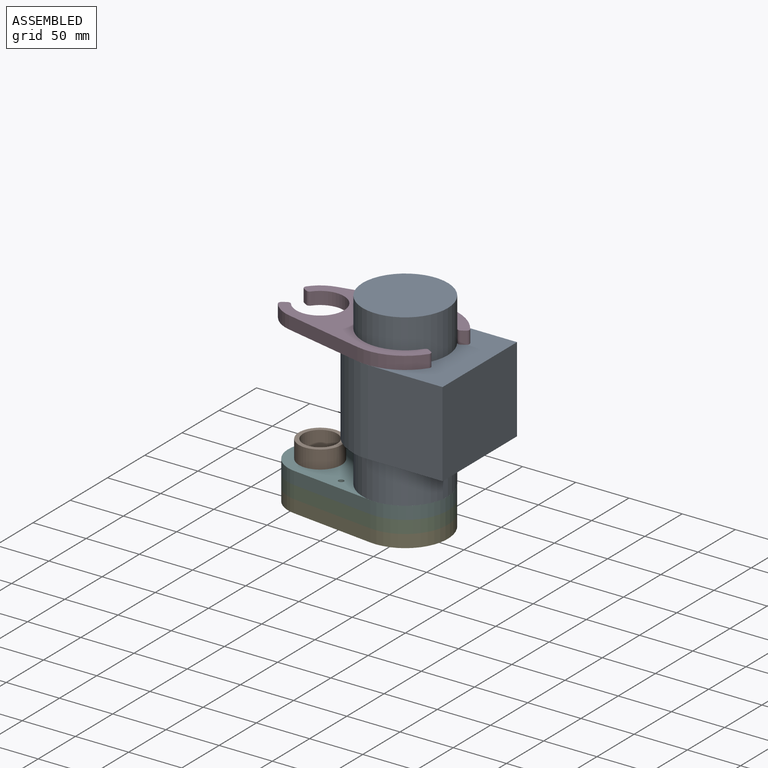
[diagram: assembled view]
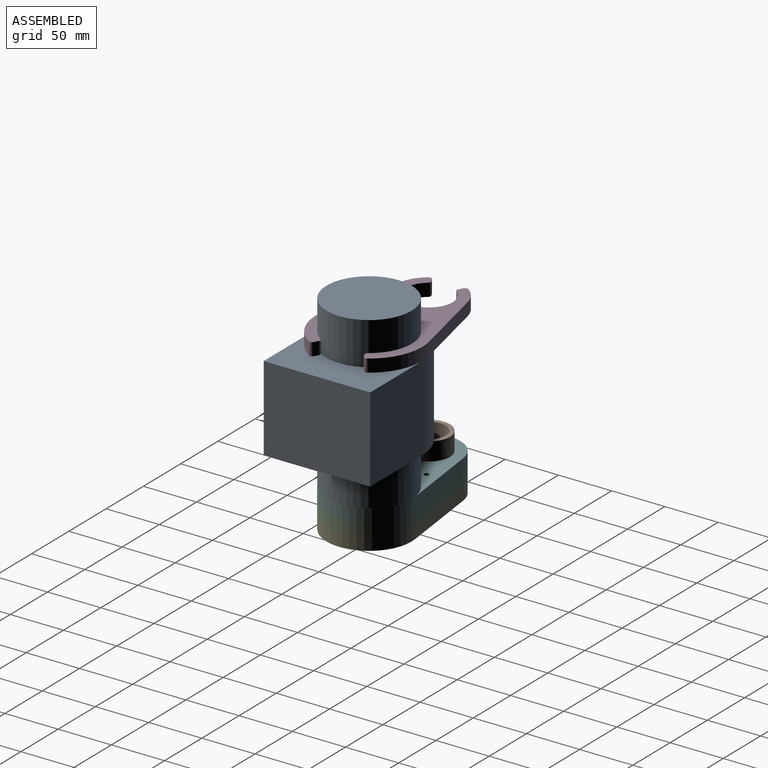
[diagram: assembled view, second angle]
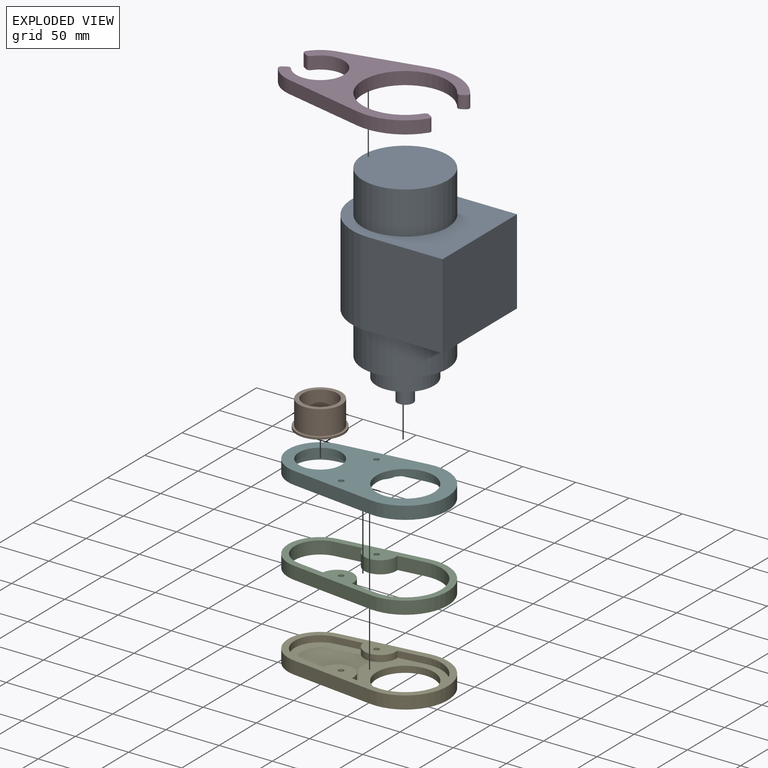
[diagram: exploded view]
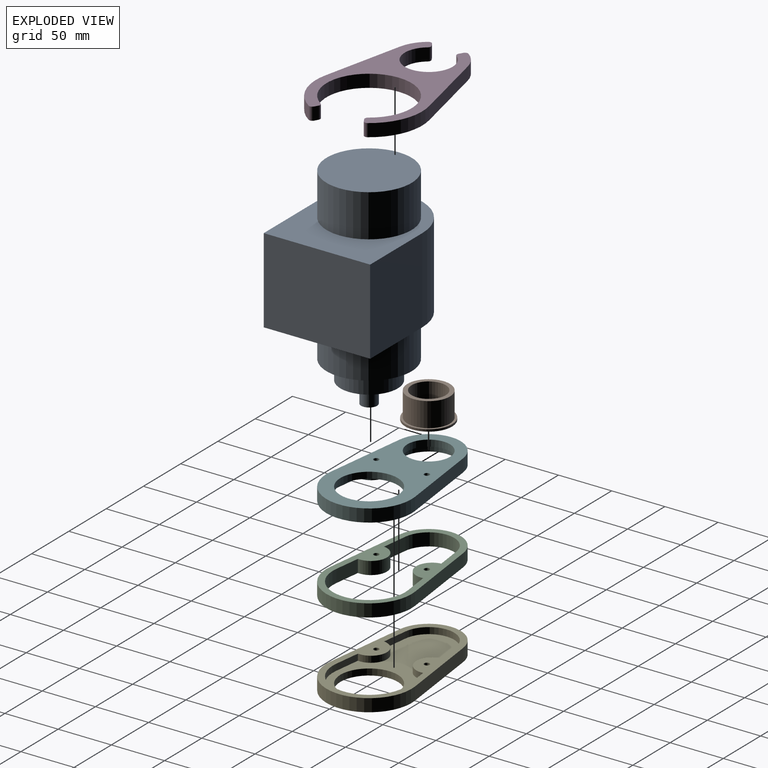
[diagram: exploded view, second angle]
ASSEMBLY  parts=6 mates=5
PART A: 14 faces, bbox 120x100x198 mm
  f0: plane 80x80mm, normal (0,0,-1), area 2736.3mm2, adj f1,f5
  f1: cylinder r=27mm len=54mm, axis (0,0,1), area 3053.6mm2, adj f0,f2
  f2: plane 54x54mm, normal (0,0,-1), area 2113.5mm2, adj f1,f3
  f3: cylinder r=7.5mm len=20mm, axis (0,0,1), area 942.5mm2, adj f2,f4
  f4: plane 15x15mm, normal (0,0,-1), area 176.7mm2, adj f3
  f5: cylinder r=40mm len=80mm, axis (0,0,-1), area 10053.1mm2, adj f0,f6
  f6: plane 120x100mm, normal (0,0,-1), area 5900.4mm2, adj f5,f10,f11,f12,f13
  f7: plane 80x80mm, normal (0,0,1), area 5026.5mm2, adj f8
  f8: cylinder r=40mm len=80mm, axis (0,0,-1), area 10053.1mm2, adj f7,f9
  f9: plane 120x100mm, normal (0,0,1), area 5900.4mm2, adj f8,f10,f11,f12,f13
  f10: plane 100x80mm, normal (1,0,0), area 8000mm2, adj f6,f9,f11,f13
  f11: plane 80x70mm, normal (0,-1,0), area 5600mm2, adj f6,f9,f10,f12
  f12: cylinder r=50mm len=100mm, axis (0,0,-1), area 12566.4mm2, adj f6,f9,f11,f13
  f13: plane 80x70mm, normal (0,1,0), area 5600mm2, adj f6,f9,f10,f12
PART B: 6 faces, bbox 44x44x25 mm
  f0: cylinder r=16mm len=32mm, axis (0,0,-1), area 2513.3mm2, adj f2,f3
  f1: cylinder r=20mm len=40mm, axis (0,0,-1), area 2890.3mm2, adj f2,f5
  f2: plane 40x40mm, normal (0,0,1), area 452.4mm2, adj f0,f1
  f3: plane 44x44mm, normal (0,0,-1), area 716.3mm2, adj f0,f4
  f4: cylinder r=22mm len=44mm, axis (0,0,-1), area 276.5mm2, adj f3,f5
  f5: plane 44x44mm, normal (0,0,1), area 263.9mm2, adj f1,f4
PART C: 16 faces, bbox 150x12x80 mm
  f0: cylinder r=24mm len=47.62mm, axis (0,-1,0), area 832.6mm2, adj f1,f11,f14,f15
  f1: plane 24.49x12mm, normal (0.12,0,-0.99), area 296.2mm2, adj f0,f2,f14,f15
  f2: cylinder r=15mm len=29.88mm, axis (0,-1,0), area 565.5mm2, adj f1,f3,f14,f15
  f3: plane 24.49x12mm, normal (0.12,0,-0.99), area 296.2mm2, adj f2,f4,f14,f15
  f4: cylinder r=34mm len=68mm, axis (0,-1,0), area 1384mm2, adj f3,f5,f14,f15
  f5: plane 24.49x12mm, normal (0.12,0,0.99), area 296.2mm2, adj f4,f6,f14,f15
  f6: cylinder r=15mm len=29.88mm, axis (0,-1,0), area 565.5mm2, adj f5,f11,f14,f15
  f7: plane 78.75x12mm, normal (-0.12,0,0.99), area 952.5mm2, adj f8,f12,f14,f15
  f8: cylinder r=30mm len=59.53mm, axis (0,-1,0), area 1040.7mm2, adj f7,f9,f14,f15
  f9: plane 78.75x12mm, normal (-0.12,0,-0.99), area 952.5mm2, adj f8,f12,f14,f15
  f10: cylinder r=2.5mm len=12mm, axis (0,-1,0), area 188.5mm2, adj f14,f15
  f11: plane 24.49x12mm, normal (0.12,0,0.99), area 296.2mm2, adj f0,f6,f14,f15
  f12: cylinder r=40mm len=80mm, axis (0,-1,0), area 1628.3mm2, adj f7,f9,f14,f15
  f13: cylinder r=2.5mm len=12mm, axis (0,-1,0), area 188.5mm2, adj f14,f15
  f14: plane 150x80mm, normal (0,1,0), area 2841.5mm2, adj f0,f1,f2,f3,f4,f5,f6,f7
  f15: plane 150x80mm, normal (0,-1,0), area 2841.5mm2, adj f0,f1,f2,f3,f4,f5,f6,f7
PART D: 22 faces, bbox 149x12x100 mm
  f0: plane 12x3.47mm, normal (0.5,0,0.87), area 48.1mm2, adj f1,f19,f20,f21
  f1: cylinder r=3mm len=12mm, axis (0,1,0), area 54mm2, adj f0,f2,f20,f21
  f2: cylinder r=40mm len=80mm, axis (0,1,0), area 2446.2mm2, adj f1,f3,f20,f21
  f3: cylinder r=3mm len=12mm, axis (0,1,0), area 54mm2, adj f2,f4,f20,f21
  f4: plane 12x3.47mm, normal (0.5,0,-0.87), area 48.1mm2, adj f3,f5,f20,f21
  f5: cylinder r=3mm len=12mm, axis (0,1,0), area 58.8mm2, adj f4,f6,f20,f21
  f6: cylinder r=50mm len=52.55mm, axis (0,1,0), area 722.3mm2, adj f5,f7,f20,f21
  f7: plane 76.17x17.08mm, normal (-0.22,0,0.98), area 936.7mm2, adj f6,f8,f20,f21
  f8: cylinder r=32.5mm len=19.24mm, axis (0,1,0), area 282.7mm2, adj f7,f9,f20,f21
  f9: cylinder r=3mm len=12mm, axis (0,1,0), area 60.2mm2, adj f8,f10,f20,f21
  f10: plane 12x3.49mm, normal (-0.5,0,-0.87), area 48.3mm2, adj f9,f11,f20,f21
  f11: cylinder r=3mm len=12mm, axis (0,1,0), area 52.3mm2, adj f10,f12,f20,f21
  f12: cylinder r=22.5mm len=45mm, axis (0,1,0), area 1350mm2, adj f11,f13,f20,f21
  f13: cylinder r=3mm len=12mm, axis (0,1,0), area 52.3mm2, adj f12,f14,f20,f21
  f14: plane 12x3.49mm, normal (-0.5,0,0.87), area 48.3mm2, adj f13,f15,f20,f21
  f15: cylinder r=3mm len=12mm, axis (0,1,0), area 60.2mm2, adj f14,f16,f20,f21
  f16: cylinder r=32.5mm len=19.24mm, axis (0,1,0), area 282.7mm2, adj f15,f17,f20,f21
  f17: plane 76.17x17.08mm, normal (-0.22,0,-0.98), area 936.7mm2, adj f16,f18,f20,f21
  f18: cylinder r=50mm len=52.55mm, axis (0,1,0), area 722.3mm2, adj f17,f19,f20,f21
  f19: cylinder r=3mm len=12mm, axis (0,1,0), area 58.8mm2, adj f0,f18,f20,f21
  f20: plane 149.04x100mm, normal (0,-1,0), area 4953.1mm2, adj f0,f1,f2,f3,f4,f5,f6,f7
  f21: plane 149.04x100mm, normal (0,1,0), area 4953.1mm2, adj f0,f1,f2,f3,f4,f5,f6,f7
PART E: 18 faces, bbox 150x12x80 mm
  f0: plane 78.75x12mm, normal (-0.12,0,0.99), area 952.5mm2, adj f1,f4,f8,f17
  f1: cylinder r=30mm len=59.53mm, axis (0,1,0), area 1040.7mm2, adj f0,f2,f8,f17
  f2: plane 78.75x12mm, normal (-0.12,0,-0.99), area 952.5mm2, adj f1,f4,f8,f17
  f3: cylinder r=2.5mm len=12mm, axis (0,1,0), area 188.5mm2, adj f8,f17
  f4: cylinder r=40mm len=80mm, axis (0,1,0), area 1628.3mm2, adj f0,f2,f8,f17
  f5: cylinder r=27mm len=54mm, axis (0,1,0), area 1017.9mm2, adj f7,f8
  f6: cylinder r=2.5mm len=12mm, axis (0,1,0), area 188.5mm2, adj f8,f17
  f7: plane 138x68mm, normal (0,-1,0), area 4399.8mm2, adj f5,f9,f10,f11,f12,f13,f14,f15
  f8: plane 150x80mm, normal (0,1,0), area 7241.3mm2, adj f0,f1,f2,f3,f4,f5,f6
  f9: cylinder r=24mm len=47.62mm, axis (0,1,0), area 416.3mm2, adj f7,f10,f16,f17
  f10: plane 24.49x6mm, normal (0.12,0,-0.99), area 148.1mm2, adj f7,f9,f11,f17
  f11: cylinder r=15mm len=29.88mm, axis (0,1,0), area 282.7mm2, adj f7,f10,f12,f17
  f12: plane 24.49x6mm, normal (0.12,0,-0.99), area 148.1mm2, adj f7,f11,f13,f17
  f13: cylinder r=34mm len=68mm, axis (0,1,0), area 692mm2, adj f7,f12,f14,f17
  f14: plane 24.49x6mm, normal (0.12,0,0.99), area 148.1mm2, adj f7,f13,f15,f17
  f15: cylinder r=15mm len=29.88mm, axis (0,1,0), area 282.7mm2, adj f7,f14,f16,f17
  f16: plane 24.49x6mm, normal (0.12,0,0.99), area 148.1mm2, adj f7,f9,f15,f17
  f17: plane 150x80mm, normal (0,-1,0), area 2841.5mm2, adj f0,f1,f2,f3,f4,f6,f9,f10
PART F: 19 faces, bbox 150x12x80 mm
  f0: plane 78.75x12mm, normal (-0.12,0,0.99), area 952.5mm2, adj f1,f4,f9,f18
  f1: cylinder r=30mm len=59.53mm, axis (0,1,0), area 1040.7mm2, adj f0,f2,f9,f18
  f2: plane 78.75x12mm, normal (-0.12,0,-0.99), area 952.5mm2, adj f1,f4,f9,f18
  f3: cylinder r=2.5mm len=12mm, axis (0,1,0), area 188.5mm2, adj f9,f18
  f4: cylinder r=40mm len=80mm, axis (0,1,0), area 1628.3mm2, adj f0,f2,f9,f18
  f5: cylinder r=27mm len=54mm, axis (0,1,0), area 1017.9mm2, adj f8,f9
  f6: cylinder r=20mm len=40mm, axis (0,1,0), area 754mm2, adj f8,f9
  f7: cylinder r=2.5mm len=12mm, axis (0,1,0), area 188.5mm2, adj f9,f18
  f8: plane 138x68mm, normal (0,-1,0), area 3143.2mm2, adj f5,f6,f10,f11,f12,f13,f14,f15
  f9: plane 150x80mm, normal (0,1,0), area 5984.7mm2, adj f0,f1,f2,f3,f4,f5,f6,f7
  f10: cylinder r=24mm len=47.62mm, axis (0,1,0), area 416.3mm2, adj f8,f11,f17,f18
  f11: plane 24.49x6mm, normal (0.12,0,-0.99), area 148.1mm2, adj f8,f10,f12,f18
  f12: cylinder r=15mm len=29.88mm, axis (0,1,0), area 282.7mm2, adj f8,f11,f13,f18
  f13: plane 24.49x6mm, normal (0.12,0,-0.99), area 148.1mm2, adj f8,f12,f14,f18
  f14: cylinder r=34mm len=68mm, axis (0,1,0), area 692mm2, adj f8,f13,f15,f18
  f15: plane 24.49x6mm, normal (0.12,0,0.99), area 148.1mm2, adj f8,f14,f16,f18
  f16: cylinder r=15mm len=29.88mm, axis (0,1,0), area 282.7mm2, adj f8,f15,f17,f18
  f17: plane 24.49x6mm, normal (0.12,0,0.99), area 148.1mm2, adj f8,f10,f16,f18
  f18: plane 150x80mm, normal (0,-1,0), area 2841.5mm2, adj f0,f1,f2,f3,f4,f7,f10,f11
PLACE A t=(12.35,10.85,31.39)mm
PLACE B rot(axis=(1,0,0),0deg) t=(-67.65,10.85,23.39)mm
PLACE C rot(axis=(-1,0,0),90deg) t=(12.35,10.85,19.39)mm
PLACE D rot(axis=(-1,0,0),90deg) t=(-217.65,10.85,151.39)mm
PLACE E rot(axis=(-1,0,0),90deg) t=(12.35,10.85,-4.61)mm
PLACE F rot(axis=(1,0,0),90deg) t=(12.35,10.85,31.39)mm
MATE fastened C.f4 <-> E.f13  axis (0,0,-1) through (12.35,10.85,7.39)mm
MATE fastened D.f2 <-> A.f5  axis (0,0,-1) through (12.35,10.85,151.39)mm
MATE fastened F.f5 <-> A.f1  axis (0,0,1) through (12.35,10.85,31.39)mm
MATE fastened B.f4 <-> F.f6  axis (0,0,1) through (-67.65,10.85,25.39)mm
MATE fastened C.f15 <-> F.f18  axis (0,0,1) through (7.35,50.53,19.39)mm
